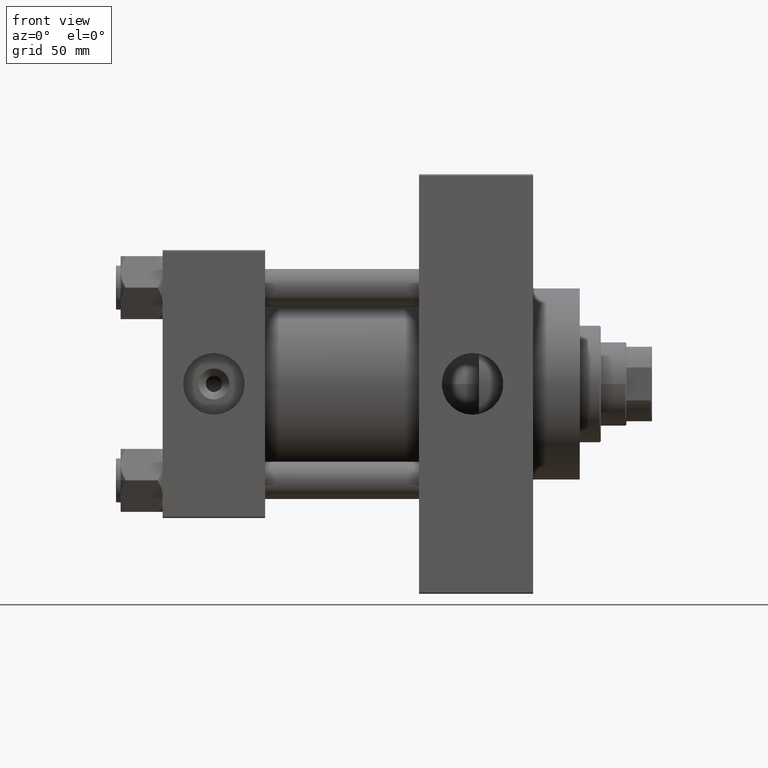
[diagram: clean part render]
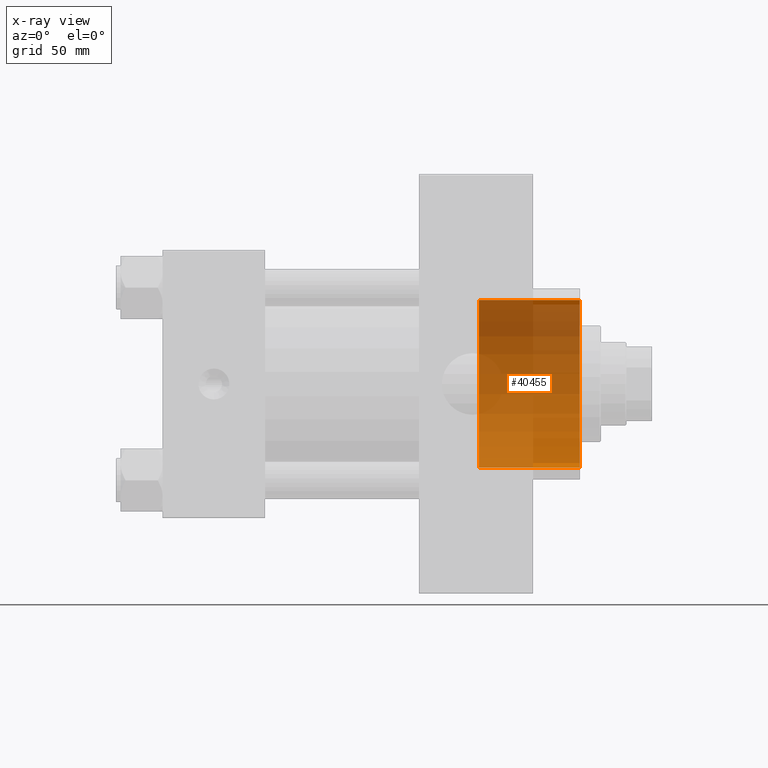
[diagram: x-ray — body ghosted, one internal face saturated and labeled with its STEP entity id]
A machine part, front view, then the same camera in x-ray: the body is ghosted and one INTERNAL B-rep face — a face not visible from any outside direction — is saturated and labeled: STEP entity #40455.
In plain terms, the highlighted cylindrical surface (partial cylindrical patch) has radius 36 mm, axis along (1, 0, 0).
Its self-contained STEP definition (entity closure, byte-faithful):
#533 = CIRCLE ( 'NONE', #13628, 36.00000000000000000 ) ;
#743 = EDGE_CURVE ( 'NONE', #40459, #30651, #1247, .T. ) ;
#903 = AXIS2_PLACEMENT_3D ( 'NONE', #37641, #22478, #36941 ) ;
#1247 = CIRCLE ( 'NONE', #28200, 36.00000000000000000 ) ;
#1295 = EDGE_CURVE ( 'NONE', #23377, #40459, #20323, .T. ) ;
#7761 = CYLINDRICAL_SURFACE ( 'NONE', #903, 36.00000000000000000 ) ;
#13082 = DIRECTION ( 'NONE',  ( 1.000000000000000000, -0.000000000000000000, -0.000000000000000000 ) ) ;
#13561 = CARTESIAN_POINT ( 'NONE',  ( 135.7400000000000091, 0.000000000000000000, -36.00000000000000000 ) ) ;
#13628 = AXIS2_PLACEMENT_3D ( 'NONE', #38033, #26462, #34171 ) ;
#15239 = CARTESIAN_POINT ( 'NONE',  ( 179.0000000000000000, 0.000000000000000000, -36.00000000000000000 ) ) ;
#15616 = ORIENTED_EDGE ( 'NONE', *, *, #1295, .T. ) ;
#16817 = CARTESIAN_POINT ( 'NONE',  ( 179.0000000000000000, 4.408728476930470856E-15, 36.00000000000000000 ) ) ;
#16884 = CARTESIAN_POINT ( 'NONE',  ( 135.7400000000000091, 4.408728476930470856E-15, 36.00000000000000000 ) ) ;
#18685 = CARTESIAN_POINT ( 'NONE',  ( 179.0000000000000000, 0.000000000000000000, 0.000000000000000000 ) ) ;
#18863 = LINE ( 'NONE', #38129, #31790 ) ;
#20323 = LINE ( 'NONE', #13561, #24397 ) ;
#22478 = DIRECTION ( 'NONE',  ( 1.000000000000000000, -0.000000000000000000, -0.000000000000000000 ) ) ;
#22756 = DIRECTION ( 'NONE',  ( 1.000000000000000000, 0.000000000000000000, 0.000000000000000000 ) ) ;
#23377 = VERTEX_POINT ( 'NONE', #37872 ) ;
#24397 = VECTOR ( 'NONE', #13082, 1000.000000000000000 ) ;
#24553 = EDGE_CURVE ( 'NONE', #23377, #25419, #533, .T. ) ;
#25419 = VERTEX_POINT ( 'NONE', #16884 ) ;
#26462 = DIRECTION ( 'NONE',  ( 1.000000000000000000, 0.000000000000000000, 0.000000000000000000 ) ) ;
#28200 = AXIS2_PLACEMENT_3D ( 'NONE', #18685, #22756, #47371 ) ;
#30651 = VERTEX_POINT ( 'NONE', #16817 ) ;
#31686 = ORIENTED_EDGE ( 'NONE', *, *, #42320, .F. ) ;
#31790 = VECTOR ( 'NONE', #33558, 1000.000000000000000 ) ;
#33558 = DIRECTION ( 'NONE',  ( 1.000000000000000000, -0.000000000000000000, -0.000000000000000000 ) ) ;
#34171 = DIRECTION ( 'NONE',  ( 0.000000000000000000, 0.000000000000000000, -1.000000000000000000 ) ) ;
#34326 = ORIENTED_EDGE ( 'NONE', *, *, #24553, .F. ) ;
#35545 = ORIENTED_EDGE ( 'NONE', *, *, #743, .T. ) ;
#36941 = DIRECTION ( 'NONE',  ( 0.000000000000000000, 0.000000000000000000, -1.000000000000000000 ) ) ;
#37641 = CARTESIAN_POINT ( 'NONE',  ( 135.7400000000000091, 0.000000000000000000, 0.000000000000000000 ) ) ;
#37872 = CARTESIAN_POINT ( 'NONE',  ( 135.7400000000000091, 0.000000000000000000, -36.00000000000000000 ) ) ;
#38033 = CARTESIAN_POINT ( 'NONE',  ( 135.7400000000000091, 0.000000000000000000, 0.000000000000000000 ) ) ;
#38129 = CARTESIAN_POINT ( 'NONE',  ( 135.7400000000000091, 4.408728476930470856E-15, 36.00000000000000000 ) ) ;
#40455 = ADVANCED_FACE ( 'NONE', ( #41245 ), #7761, .F. ) ;
#40459 = VERTEX_POINT ( 'NONE', #15239 ) ;
#41245 = FACE_OUTER_BOUND ( 'NONE', #42652, .T. ) ;
#42320 = EDGE_CURVE ( 'NONE', #25419, #30651, #18863, .T. ) ;
#42652 = EDGE_LOOP ( 'NONE', ( #31686, #34326, #15616, #35545 ) ) ;
#47371 = DIRECTION ( 'NONE',  ( 0.000000000000000000, 0.000000000000000000, -1.000000000000000000 ) ) ;